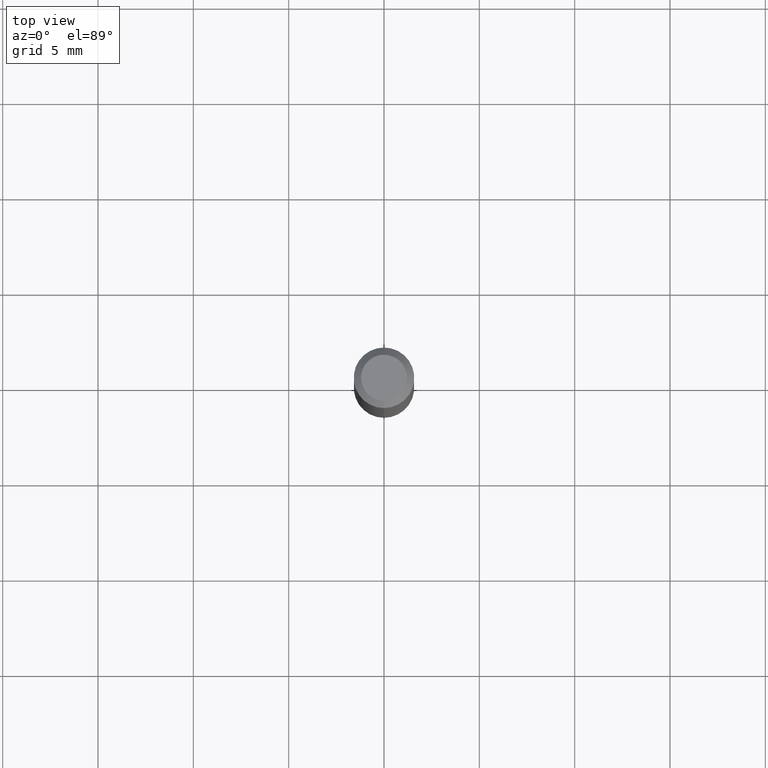
[diagram: clean part render]
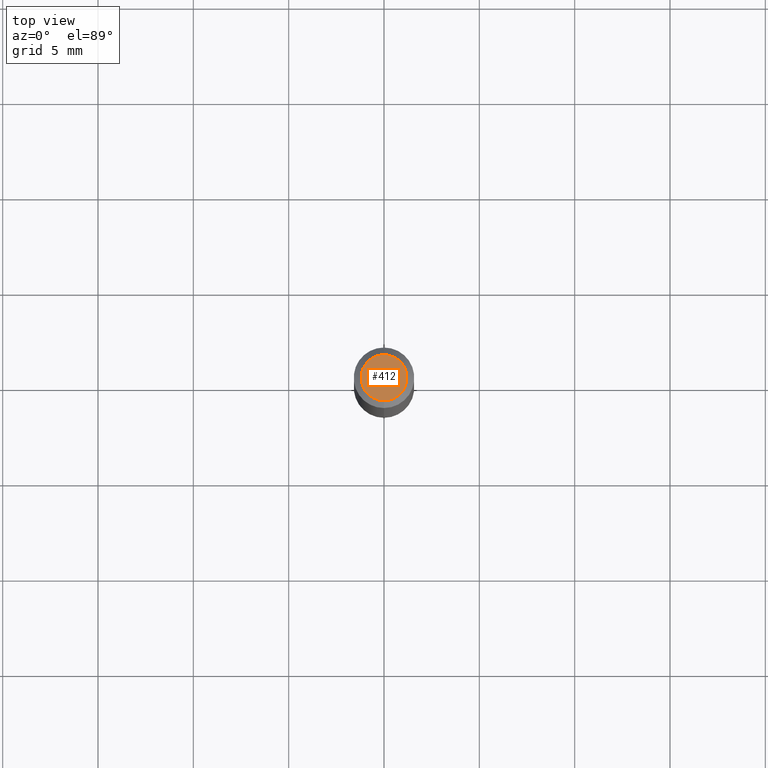
[diagram: same view with one face highlighted and labeled with its STEP entity id]
A machine part, top view. The second image highlights one B-rep face of the part: STEP entity #412.
In plain terms, the highlighted planar face has unit normal (0, -0, -1).
Its self-contained STEP definition (entity closure, byte-faithful):
#39 = VERTEX_POINT ( 'NONE', #385 ) ;
#49 = EDGE_LOOP ( 'NONE', ( #53, #158 ) ) ;
#53 = ORIENTED_EDGE ( 'NONE', *, *, #316, .T. ) ;
#76 = CIRCLE ( 'NONE', #196, 0.04749999999999999362 ) ;
#122 = CARTESIAN_POINT ( 'NONE',  ( 2.168347630426420581E-46, -3.095596498023266248E-32, -8.866469541423388147E-18 ) ) ;
#130 = DIRECTION ( 'NONE',  ( 6.982962677686265922E-15, 1.000000000000000000, -3.491351866220149979E-15 ) ) ;
#158 = ORIENTED_EDGE ( 'NONE', *, *, #318, .T. ) ;
#169 = FACE_OUTER_BOUND ( 'NONE', #49, .T. ) ;
#177 = CARTESIAN_POINT ( 'NONE',  ( 3.840629472727447874E-16, 0.04749999999999999362, -1.747056831868805136E-16 ) ) ;
#196 = AXIS2_PLACEMENT_3D ( 'NONE', #197, #507, #467 ) ;
#197 = CARTESIAN_POINT ( 'NONE',  ( 2.168347630426420581E-46, -3.095596498023266248E-32, -8.866469541423388147E-18 ) ) ;
#232 = DIRECTION ( 'NONE',  ( -2.445559216434552627E-29, 3.491351866220149979E-15, 1.000000000000000000 ) ) ;
#245 = VERTEX_POINT ( 'NONE', #177 ) ;
#296 = CIRCLE ( 'NONE', #387, 0.04749999999999999362 ) ;
#316 = EDGE_CURVE ( 'NONE', #245, #39, #296, .T. ) ;
#318 = EDGE_CURVE ( 'NONE', #39, #245, #76, .T. ) ;
#368 = DIRECTION ( 'NONE',  ( 2.445559216434552347E-29, -3.491351866220149979E-15, -1.000000000000000000 ) ) ;
#385 = CARTESIAN_POINT ( 'NONE',  ( -3.773273898774340269E-16, -0.04749999999999999362, 1.569727441040337127E-16 ) ) ;
#387 = AXIS2_PLACEMENT_3D ( 'NONE', #122, #232, #392 ) ;
#392 = DIRECTION ( 'NONE',  ( -6.982962677686266711E-15, -1.000000000000000000, 3.491351866220150374E-15 ) ) ;
#412 = ADVANCED_FACE ( 'NONE', ( #169 ), #476, .F. ) ;
#413 = AXIS2_PLACEMENT_3D ( 'NONE', #471, #368, #130 ) ;
#467 = DIRECTION ( 'NONE',  ( -6.982962677686266711E-15, -1.000000000000000000, 3.491351866220150374E-15 ) ) ;
#471 = CARTESIAN_POINT ( 'NONE',  ( 3.316907271900976096E-16, 0.04749999999999999362, -1.702724484161688134E-16 ) ) ;
#476 = PLANE ( 'NONE',  #413 ) ;
#507 = DIRECTION ( 'NONE',  ( -2.445559216434552627E-29, 3.491351866220149979E-15, 1.000000000000000000 ) ) ;